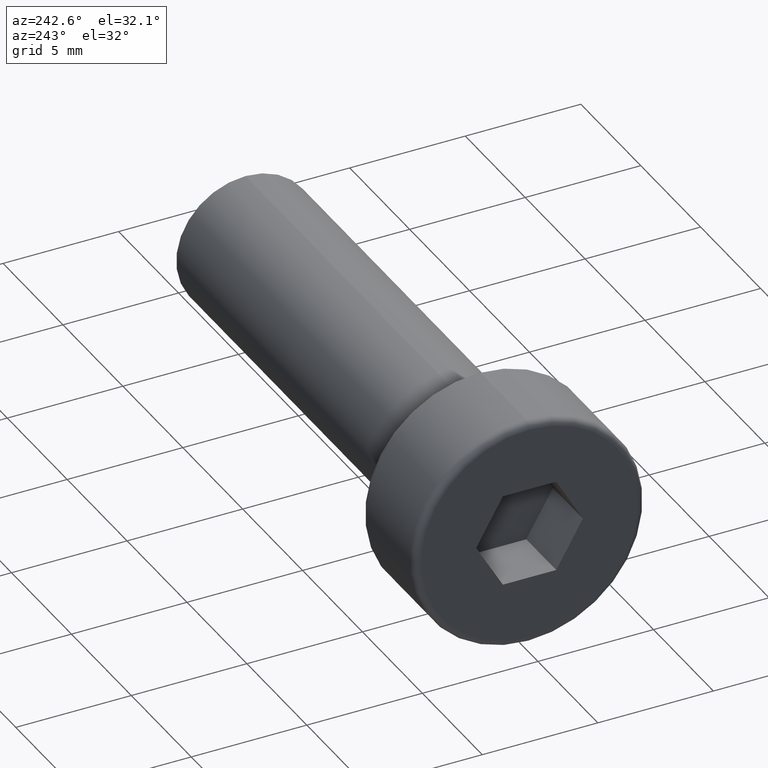
[diagram: clean part render]
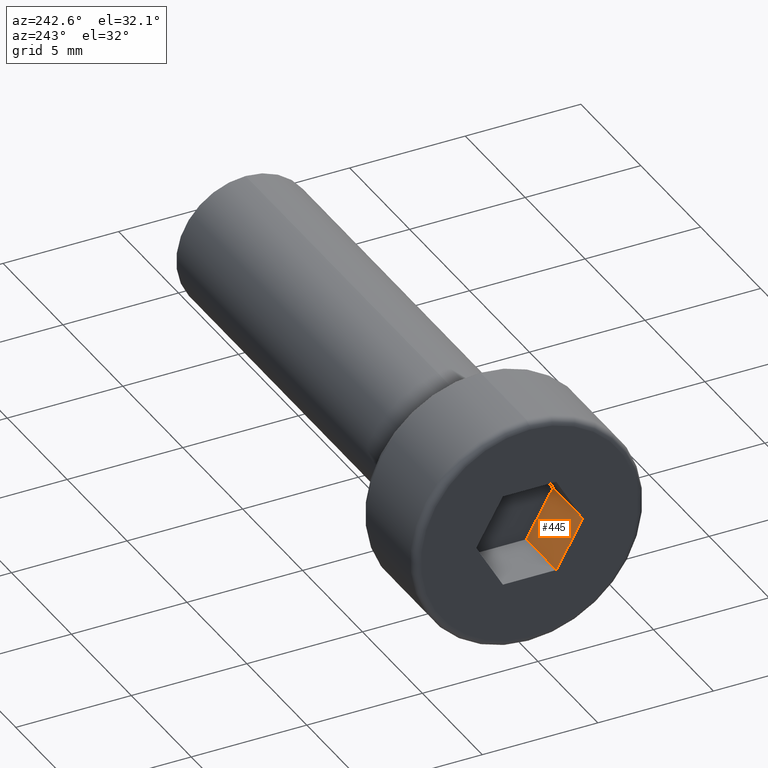
[diagram: same view with one face highlighted and labeled with its STEP entity id]
A machine part, auxiliary view. The second image highlights one B-rep face of the part: STEP entity #445.
In plain terms, the highlighted planar face has unit normal (0, -0.866, -0.5).
Its self-contained STEP definition (entity closure, byte-faithful):
#15 = DIRECTION ( 'NONE',  ( -1.000000000000000000, -0.0000000000000000000, -0.0000000000000000000 ) ) ;
#72 = DIRECTION ( 'NONE',  ( -0.0000000000000000000, -0.5000000000000000000, 0.8660254037844386000 ) ) ;
#115 = DIRECTION ( 'NONE',  ( -1.000000000000000000, -0.0000000000000000000, -0.0000000000000000000 ) ) ;
#199 = VERTEX_POINT ( 'NONE', #583 ) ;
#208 = DIRECTION ( 'NONE',  ( -0.0000000000000000000, -0.5000000000000000000, 0.8660254037844386000 ) ) ;
#221 = CARTESIAN_POINT ( 'NONE',  ( -1.800000000000000000, -2.309401076758518000, 8.673617379884035500E-016 ) ) ;
#241 = ORIENTED_EDGE ( 'NONE', *, *, #466, .F. ) ;
#286 = CARTESIAN_POINT ( 'NONE',  ( -4.299999999999999800, -2.309401076758518000, 8.673617379884035500E-016 ) ) ;
#306 = FACE_OUTER_BOUND ( 'NONE', #596, .T. ) ;
#316 = VERTEX_POINT ( 'NONE', #760 ) ;
#382 = VECTOR ( 'NONE', #208, 1000.000000000000200 ) ;
#398 = EDGE_CURVE ( 'NONE', #752, #199, #662, .T. ) ;
#403 = ORIENTED_EDGE ( 'NONE', *, *, #802, .F. ) ;
#404 = VERTEX_POINT ( 'NONE', #221 ) ;
#417 = DIRECTION ( 'NONE',  ( 0.0000000000000000000, -0.8660254037844387100, -0.5000000000000001100 ) ) ;
#424 = CARTESIAN_POINT ( 'NONE',  ( -1.800000000000000000, -1.154700538379258300, -2.000000000000012900 ) ) ;
#445 = ADVANCED_FACE ( 'NONE', ( #306 ), #489, .F. ) ;
#446 = EDGE_CURVE ( 'NONE', #316, #752, #774, .T. ) ;
#458 = VECTOR ( 'NONE', #15, 1000.000000000000000 ) ;
#466 = EDGE_CURVE ( 'NONE', #316, #404, #557, .T. ) ;
#472 = CARTESIAN_POINT ( 'NONE',  ( -1.800000000000000000, -2.309401076758518000, 8.673617379884035500E-016 ) ) ;
#483 = VECTOR ( 'NONE', #72, 1000.000000000000200 ) ;
#489 = PLANE ( 'NONE',  #814 ) ;
#540 = CARTESIAN_POINT ( 'NONE',  ( -4.299999999999999800, -1.154700538379258100, -2.000000000000012900 ) ) ;
#553 = CARTESIAN_POINT ( 'NONE',  ( -1.800000000000000000, -2.309401076758518000, 8.673617379884035500E-016 ) ) ;
#557 = LINE ( 'NONE', #472, #382 ) ;
#583 = CARTESIAN_POINT ( 'NONE',  ( -4.299999999999999800, -2.309401076758518000, 8.673617379884035500E-016 ) ) ;
#592 = ORIENTED_EDGE ( 'NONE', *, *, #398, .T. ) ;
#596 = EDGE_LOOP ( 'NONE', ( #592, #403, #241, #627 ) ) ;
#627 = ORIENTED_EDGE ( 'NONE', *, *, #446, .T. ) ;
#636 = CARTESIAN_POINT ( 'NONE',  ( -1.800000000000000000, -2.309401076758518000, 8.673617379884035500E-016 ) ) ;
#662 = LINE ( 'NONE', #286, #483 ) ;
#664 = LINE ( 'NONE', #636, #815 ) ;
#720 = DIRECTION ( 'NONE',  ( 0.0000000000000000000, 0.5000000000000000000, -0.8660254037844386000 ) ) ;
#752 = VERTEX_POINT ( 'NONE', #540 ) ;
#760 = CARTESIAN_POINT ( 'NONE',  ( -1.800000000000000000, -1.154700538379258300, -2.000000000000012900 ) ) ;
#774 = LINE ( 'NONE', #424, #458 ) ;
#802 = EDGE_CURVE ( 'NONE', #404, #199, #664, .T. ) ;
#814 = AXIS2_PLACEMENT_3D ( 'NONE', #553, #417, #720 ) ;
#815 = VECTOR ( 'NONE', #115, 1000.000000000000000 ) ;